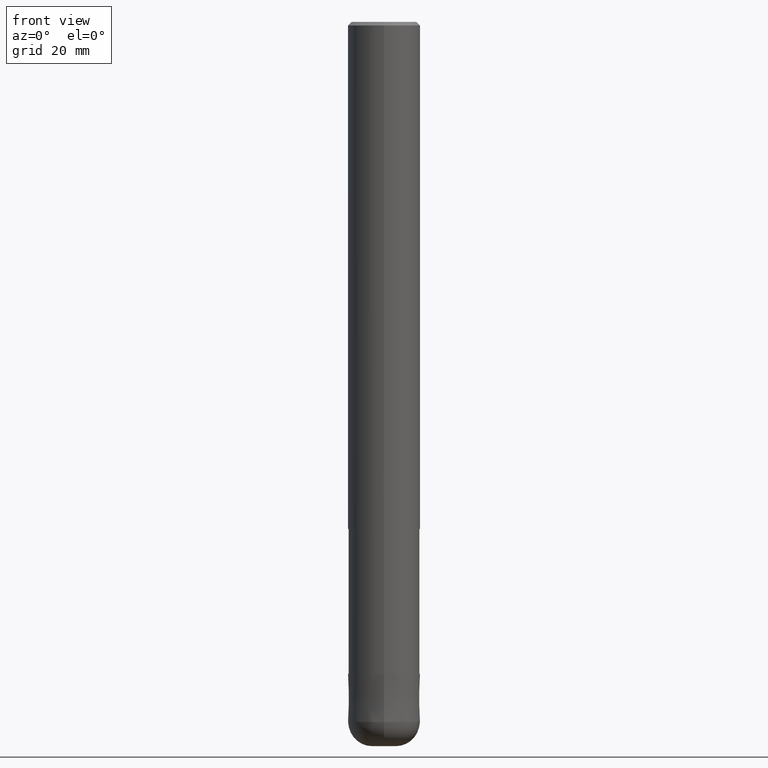
[diagram: clean part render]
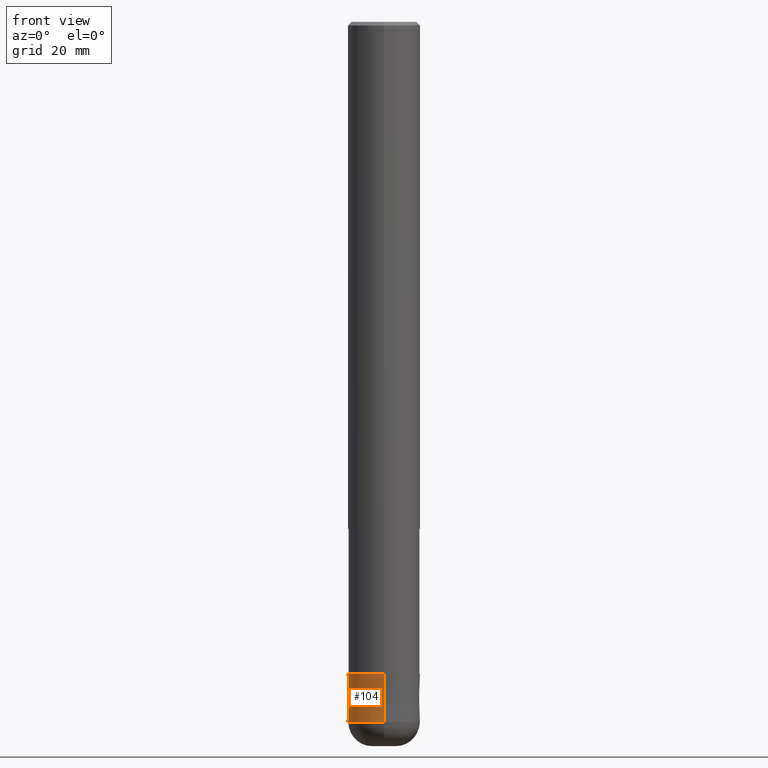
[diagram: same view with one face highlighted and labeled with its STEP entity id]
A machine part, front view. The second image highlights one B-rep face of the part: STEP entity #104.
In plain terms, the highlighted conical surface has half-angle 0.001 deg.
Its self-contained STEP definition (entity closure, byte-faithful):
#104=ADVANCED_FACE('',(#242),#243,.T.);
#108=VERTEX_POINT('',#247);
#110=EDGE_CURVE('',#108,#118,#249,.T.);
#112=EDGE_CURVE('',#118,#134,#251,.T.);
#118=VERTEX_POINT('',#257);
#120=EDGE_CURVE('',#108,#156,#259,.T.);
#134=VERTEX_POINT('',#276);
#156=VERTEX_POINT('',#301);
#166=EDGE_CURVE('',#134,#156,#311,.T.);
#242=FACE_OUTER_BOUND('',#388,.T.);
#243=CONICAL_SURFACE('',#389,5.99995,1.24999999993198E-005);
#247=CARTESIAN_POINT('',(7.34763812293427E-016,-6.0,-116.0));
#249=LINE('',#397,#398);
#251=CIRCLE('',#401,5.9999);
#257=CARTESIAN_POINT('',(7.34751566229888E-016,-5.9999,-108.0));
#259=CIRCLE('',#411,6.0);
#276=CARTESIAN_POINT('',(0.0,5.9999,-108.0));
#301=CARTESIAN_POINT('',(0.0,6.0,-116.0));
#311=LINE('',#475,#476);
#388=EDGE_LOOP('',(#554,#555,#556,#557));
#389=AXIS2_PLACEMENT_3D('',#558,#559,#560);
#397=CARTESIAN_POINT('',(7.34757689261657E-016,-5.99995,-112.0));
#398=VECTOR('',#564,1.0);
#401=AXIS2_PLACEMENT_3D('',#565,#566,#567);
#411=AXIS2_PLACEMENT_3D('',#571,#572,#573);
#475=CARTESIAN_POINT('',(-7.34757689261657E-016,5.99995,-112.0));
#476=VECTOR('',#642,1.0);
#554=ORIENTED_EDGE('',*,*,#166,.T.);
#555=ORIENTED_EDGE('',*,*,#120,.F.);
#556=ORIENTED_EDGE('',*,*,#110,.T.);
#557=ORIENTED_EDGE('',*,*,#112,.T.);
#558=CARTESIAN_POINT('',(0.0,0.0,-112.0));
#559=DIRECTION('',(0.0,-0.0,-1.0));
#560=DIRECTION('',(0.0,1.0,0.0));
#564=DIRECTION('',(-1.53075794215481E-021,1.24999999989943E-005,0.999999999921875));
#565=CARTESIAN_POINT('',(0.0,0.0,-108.0));
#566=DIRECTION('',(0.0,0.0,-1.0));
#567=DIRECTION('',(0.0,1.0,0.0));
#571=CARTESIAN_POINT('',(0.0,0.0,-116.0));
#572=DIRECTION('',(0.0,0.0,-1.0));
#573=DIRECTION('',(0.0,1.0,0.0));
#642=DIRECTION('',(-1.53075794215481E-021,1.24999999989943E-005,-0.999999999921875));